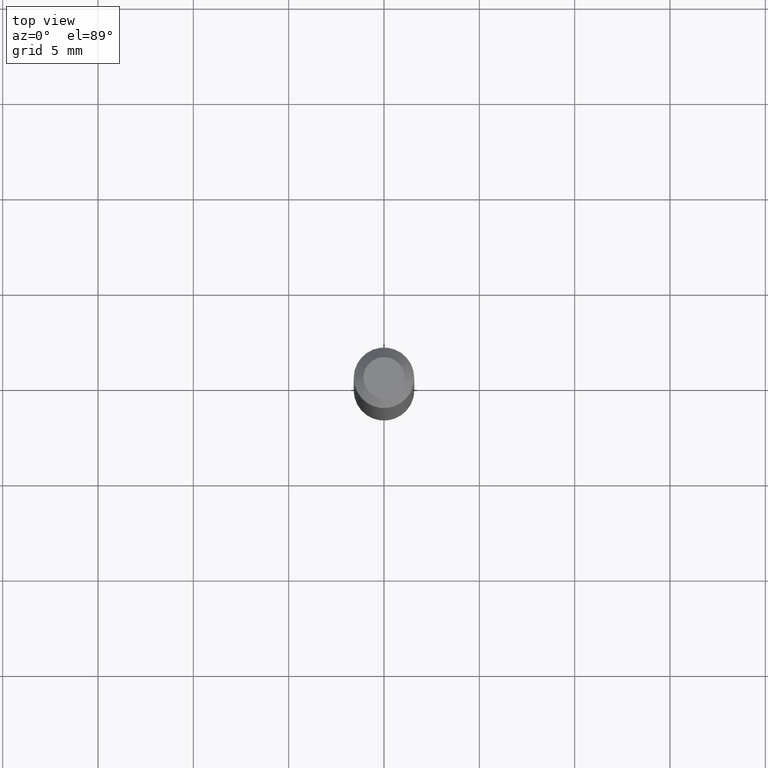
[diagram: clean part render]
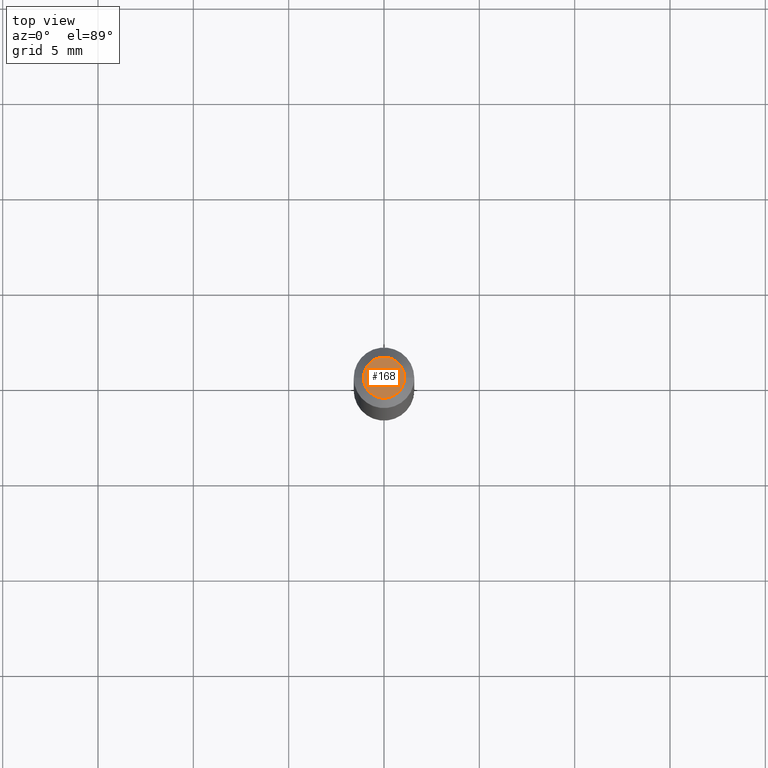
[diagram: same view with one face highlighted and labeled with its STEP entity id]
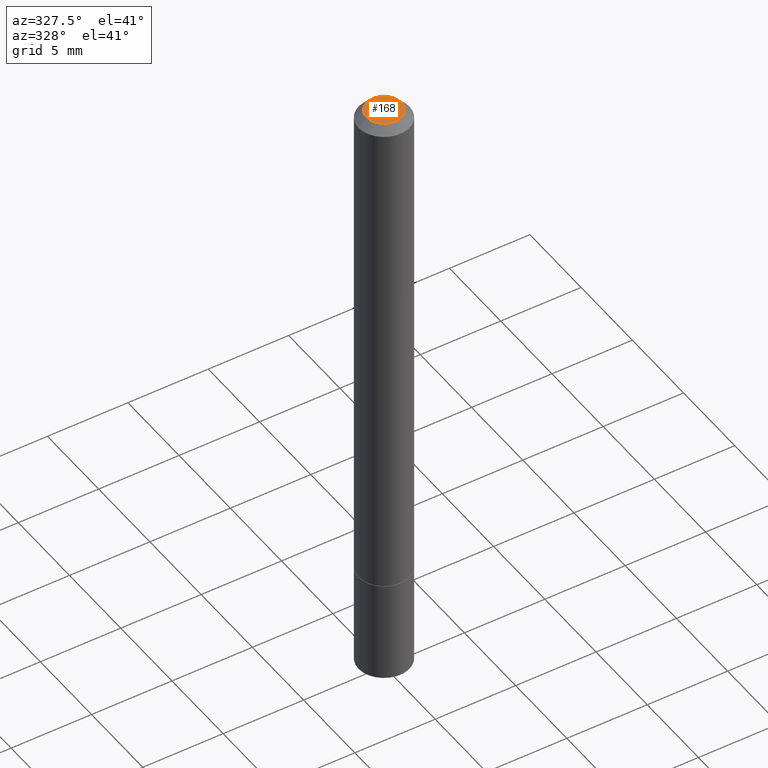
[diagram: same view with one face highlighted and labeled with its STEP entity id]
A machine part, top view. The second image highlights one B-rep face of the part: STEP entity #168.
A second angle (auxiliary view) of the same face is appended — the face is thin or edge-on in the first view.
In plain terms, the highlighted planar face has unit normal (0, -0, -1).
Its self-contained STEP definition (entity closure, byte-faithful):
#14 = DIRECTION ( 'NONE',  ( -2.445468806185136597E-29, 3.491481338843145583E-15, 1.000000000000000000 ) ) ;
#41 = CIRCLE ( 'NONE', #336, 0.04250000000000002387 ) ;
#64 = DIRECTION ( 'NONE',  ( -1.000000000000000000, 6.982962677686265922E-15, -4.876176775795935793E-29 ) ) ;
#68 = DIRECTION ( 'NONE',  ( 1.000000000000000000, -6.982962677686267499E-15, 4.870577812114081924E-29 ) ) ;
#70 = DIRECTION ( 'NONE',  ( -2.445468806185136597E-29, 3.491481338843145583E-15, 1.000000000000000000 ) ) ;
#119 = AXIS2_PLACEMENT_3D ( 'NONE', #197, #14, #232 ) ;
#133 = VERTEX_POINT ( 'NONE', #263 ) ;
#147 = FACE_OUTER_BOUND ( 'NONE', #240, .T. ) ;
#158 = EDGE_CURVE ( 'NONE', #133, #191, #312, .T. ) ;
#168 = ADVANCED_FACE ( 'NONE', ( #147 ), #315, .F. ) ;
#170 = CARTESIAN_POINT ( 'NONE',  ( 0.04250000000000002387, -3.950909582714369417E-16, -3.841661241090128254E-17 ) ) ;
#172 = CARTESIAN_POINT ( 'NONE',  ( 9.394662729016977403E-46, -1.341308853342402453E-31, -3.841661241090370459E-17 ) ) ;
#185 = EDGE_CURVE ( 'NONE', #191, #133, #41, .T. ) ;
#191 = VERTEX_POINT ( 'NONE', #170 ) ;
#197 = CARTESIAN_POINT ( 'NONE',  ( 9.394662729016977403E-46, -1.341308853342402453E-31, -3.841661241090370459E-17 ) ) ;
#216 = ORIENTED_EDGE ( 'NONE', *, *, #185, .T. ) ;
#220 = ORIENTED_EDGE ( 'NONE', *, *, #158, .T. ) ;
#232 = DIRECTION ( 'NONE',  ( 1.000000000000000000, -6.982962677686267499E-15, 4.870577812114081924E-29 ) ) ;
#240 = EDGE_LOOP ( 'NONE', ( #220, #216 ) ) ;
#262 = CARTESIAN_POINT ( 'NONE',  ( 2.967759138016664535E-16, 0.04250000000000002387, -1.675962631062856399E-16 ) ) ;
#263 = CARTESIAN_POINT ( 'NONE',  ( -0.04250000000000002387, 3.316907271900973138E-16, -3.841661241090589861E-17 ) ) ;
#312 = CIRCLE ( 'NONE', #119, 0.04250000000000002387 ) ;
#315 = PLANE ( 'NONE',  #342 ) ;
#336 = AXIS2_PLACEMENT_3D ( 'NONE', #172, #70, #68 ) ;
#342 = AXIS2_PLACEMENT_3D ( 'NONE', #262, #347, #64 ) ;
#347 = DIRECTION ( 'NONE',  ( 2.438088387897960049E-29, -3.491481338843145188E-15, -1.000000000000000000 ) ) ;